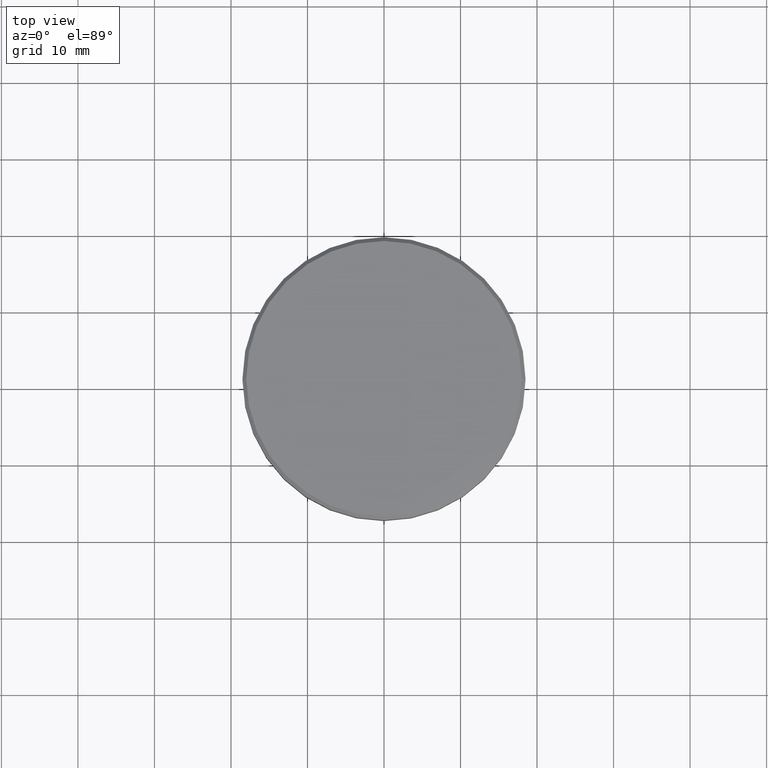
[diagram: clean part render]
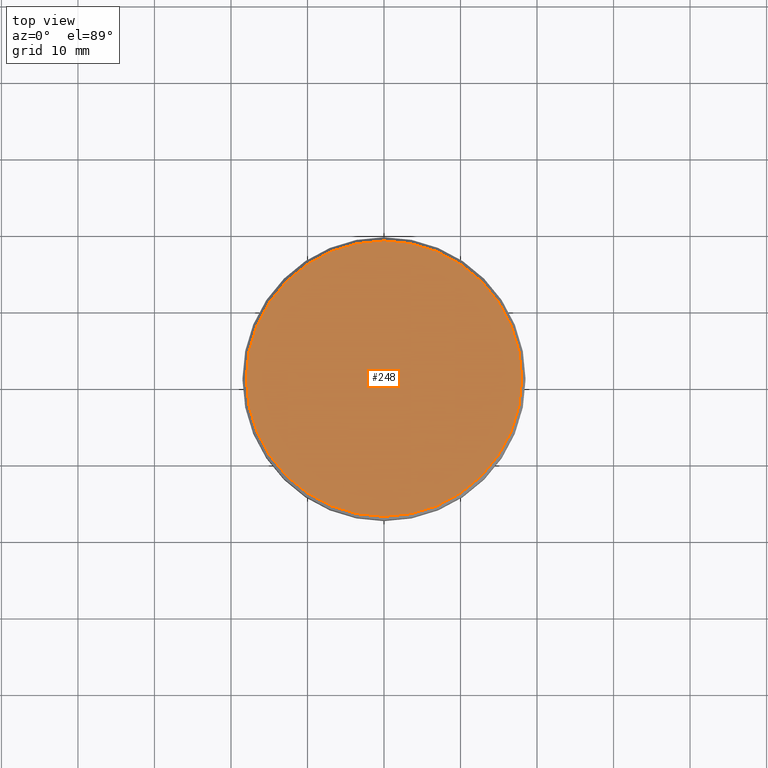
[diagram: same view with one face highlighted and labeled with its STEP entity id]
A machine part, top view. The second image highlights one B-rep face of the part: STEP entity #248.
In plain terms, the highlighted planar face has unit normal (0, -0, 1).
Its self-contained STEP definition (entity closure, byte-faithful):
#39 = AXIS2_PLACEMENT_3D ( 'NONE', #229, #231, #358 ) ;
#47 = CIRCLE ( 'NONE', #39, 17.99999999999998934 ) ;
#52 = EDGE_LOOP ( 'NONE', ( #343, #106 ) ) ;
#75 = PLANE ( 'NONE',  #298 ) ;
#106 = ORIENTED_EDGE ( 'NONE', *, *, #212, .T. ) ;
#139 = FACE_OUTER_BOUND ( 'NONE', #52, .T. ) ;
#141 = CIRCLE ( 'NONE', #325, 17.99999999999998934 ) ;
#144 = DIRECTION ( 'NONE',  ( 1.000000000000000000, 0.000000000000000000, 0.000000000000000000 ) ) ;
#166 = DIRECTION ( 'NONE',  ( -0.000000000000000000, -0.000000000000000000, 1.000000000000000000 ) ) ;
#171 = CARTESIAN_POINT ( 'NONE',  ( -17.99999999999998934, 0.000000000000000000, 0.000000000000000000 ) ) ;
#203 = CARTESIAN_POINT ( 'NONE',  ( 0.000000000000000000, 0.000000000000000000, 0.000000000000000000 ) ) ;
#212 = EDGE_CURVE ( 'NONE', #370, #311, #47, .T. ) ;
#229 = CARTESIAN_POINT ( 'NONE',  ( 0.000000000000000000, 0.000000000000000000, 0.000000000000000000 ) ) ;
#231 = DIRECTION ( 'NONE',  ( -0.000000000000000000, -0.000000000000000000, 1.000000000000000000 ) ) ;
#248 = ADVANCED_FACE ( 'NONE', ( #139 ), #75, .T. ) ;
#270 = CARTESIAN_POINT ( 'NONE',  ( 0.000000000000000000, 0.000000000000000000, 0.000000000000000000 ) ) ;
#282 = EDGE_CURVE ( 'NONE', #311, #370, #141, .T. ) ;
#298 = AXIS2_PLACEMENT_3D ( 'NONE', #270, #396, #144 ) ;
#309 = DIRECTION ( 'NONE',  ( 1.000000000000000000, 0.000000000000000000, 0.000000000000000000 ) ) ;
#311 = VERTEX_POINT ( 'NONE', #171 ) ;
#325 = AXIS2_PLACEMENT_3D ( 'NONE', #203, #166, #309 ) ;
#341 = CARTESIAN_POINT ( 'NONE',  ( 17.99999999999998934, 2.234980408443918820E-15, 0.000000000000000000 ) ) ;
#343 = ORIENTED_EDGE ( 'NONE', *, *, #282, .T. ) ;
#358 = DIRECTION ( 'NONE',  ( 1.000000000000000000, 0.000000000000000000, 0.000000000000000000 ) ) ;
#370 = VERTEX_POINT ( 'NONE', #341 ) ;
#396 = DIRECTION ( 'NONE',  ( 0.000000000000000000, -0.000000000000000000, 1.000000000000000000 ) ) ;